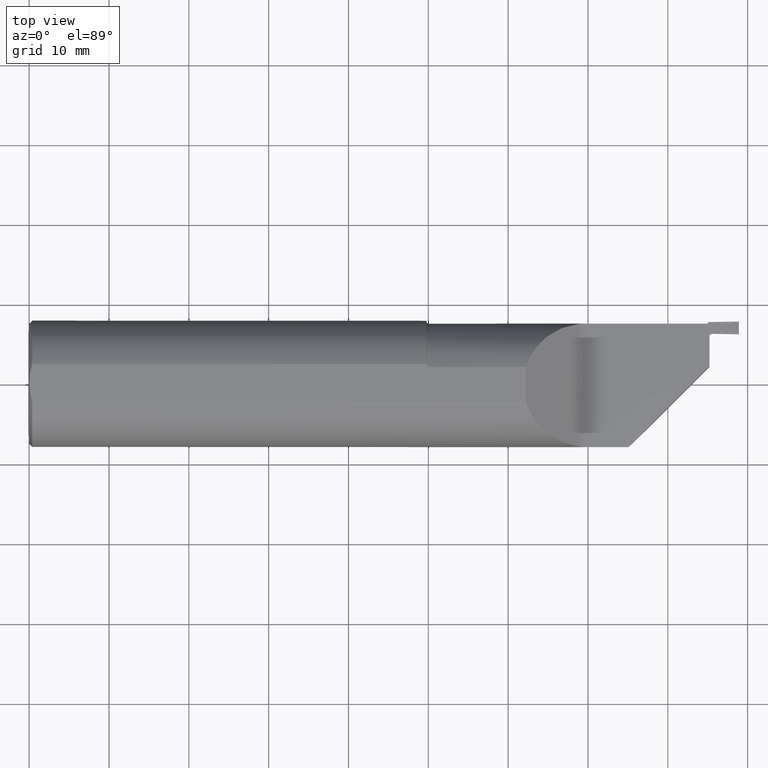
[diagram: clean part render]
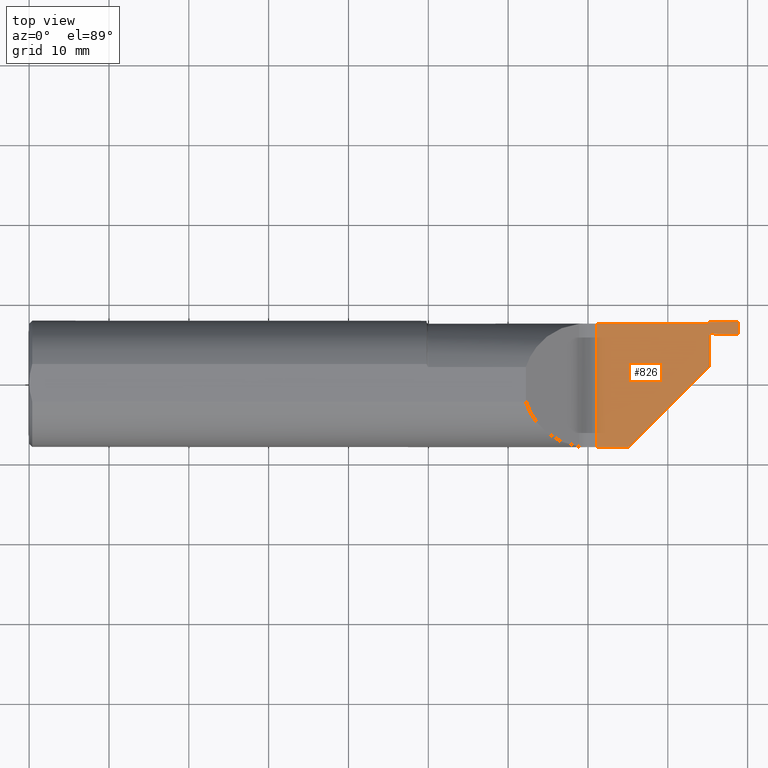
[diagram: same view with one face highlighted and labeled with its STEP entity id]
A machine part, top view. The second image highlights one B-rep face of the part: STEP entity #826.
In plain terms, the highlighted planar face has unit normal (0, 0, -1).
Its self-contained STEP definition (entity closure, byte-faithful):
#9 = LINE ( 'NONE', #498, #421 ) ;
#14 = CARTESIAN_POINT ( 'NONE',  ( 3.341999999999999638, 0.2973492383597809430, 0.000000000000000000 ) ) ;
#35 = CARTESIAN_POINT ( 'NONE',  ( 2.954999999999998295, -0.3123499999999999610, 0.000000000000000000 ) ) ;
#46 = VECTOR ( 'NONE', #201, 39.37007874015748854 ) ;
#50 = EDGE_CURVE ( 'NONE', #595, #247, #348, .T. ) ;
#54 = ORIENTED_EDGE ( 'NONE', *, *, #405, .T. ) ;
#113 = EDGE_CURVE ( 'NONE', #396, #827, #626, .T. ) ;
#127 = EDGE_CURVE ( 'NONE', #396, #192, #427, .T. ) ;
#133 = CARTESIAN_POINT ( 'NONE',  ( 2.799776695296631868, 0.2973492383597807764, -1.707404996040164512E-17 ) ) ;
#148 = EDGE_LOOP ( 'NONE', ( #641, #354, #238, #298, #797, #559, #724, #620, #54, #878 ) ) ;
#151 = DIRECTION ( 'NONE',  ( -1.000000000000000000, 0.000000000000000000, 0.000000000000000000 ) ) ;
#159 = DIRECTION ( 'NONE',  ( -1.000000000000000000, 0.000000000000000000, 0.000000000000000000 ) ) ;
#167 = EDGE_CURVE ( 'NONE', #651, #850, #707, .T. ) ;
#182 = VERTEX_POINT ( 'NONE', #35 ) ;
#192 = VERTEX_POINT ( 'NONE', #14 ) ;
#193 = EDGE_CURVE ( 'NONE', #192, #595, #369, .T. ) ;
#201 = DIRECTION ( 'NONE',  ( -0.7071067811865484609, -0.7071067811865464625, 0.000000000000000000 ) ) ;
#208 = VECTOR ( 'NONE', #769, 39.37007874015748143 ) ;
#238 = ORIENTED_EDGE ( 'NONE', *, *, #113, .T. ) ;
#247 = VERTEX_POINT ( 'NONE', #358 ) ;
#262 = DIRECTION ( 'NONE',  ( 0.000000000000000000, 0.000000000000000000, -1.000000000000000000 ) ) ;
#274 = CARTESIAN_POINT ( 'NONE',  ( 2.799776695296631868, -0.4123500000000000498, 0.000000000000000000 ) ) ;
#282 = VERTEX_POINT ( 'NONE', #676 ) ;
#288 = DIRECTION ( 'NONE',  ( -0.000000000000000000, -0.000000000000000000, 1.000000000000000000 ) ) ;
#297 = DIRECTION ( 'NONE',  ( -0.9998476951563912696, 0.01745240643727530988, -0.000000000000000000 ) ) ;
#298 = ORIENTED_EDGE ( 'NONE', *, *, #556, .F. ) ;
#323 = EDGE_CURVE ( 'NONE', #601, #282, #378, .T. ) ;
#327 = CARTESIAN_POINT ( 'NONE',  ( 3.354999999999999538, 0.2367041488446496589, 0.000000000000000000 ) ) ;
#329 = AXIS2_PLACEMENT_3D ( 'NONE', #858, #445, #151 ) ;
#335 = CARTESIAN_POINT ( 'NONE',  ( 2.799776695296631868, -0.3123499999999999610, 0.000000000000000000 ) ) ;
#348 = LINE ( 'NONE', #686, #423 ) ;
#352 = CARTESIAN_POINT ( 'NONE',  ( 3.354999999999999538, 0.2367041488446496589, 0.000000000000000000 ) ) ;
#354 = ORIENTED_EDGE ( 'NONE', *, *, #127, .F. ) ;
#358 = CARTESIAN_POINT ( 'NONE',  ( 3.500000000000000000, 0.3073492383597807298, 9.134616728814879582E-16 ) ) ;
#369 = CIRCLE ( 'NONE', #888, 0.007999999999999478015 ) ;
#372 = CARTESIAN_POINT ( 'NONE',  ( 3.341999999999999638, 0.3053492383597807280, 0.000000000000000000 ) ) ;
#378 = LINE ( 'NONE', #327, #829 ) ;
#382 = CARTESIAN_POINT ( 'NONE',  ( 3.500000000000000444, 0.2443492383597804796, 0.000000000000000000 ) ) ;
#396 = VERTEX_POINT ( 'NONE', #133 ) ;
#405 = EDGE_CURVE ( 'NONE', #651, #247, #414, .T. ) ;
#409 = CARTESIAN_POINT ( 'NONE',  ( 3.365174524064372896, 0.2467026257962136038, -3.414809992080329023E-17 ) ) ;
#414 = LINE ( 'NONE', #757, #208 ) ;
#419 = CARTESIAN_POINT ( 'NONE',  ( 3.354999999999999538, 0.08765000000000008895, 0.000000000000000000 ) ) ;
#421 = VECTOR ( 'NONE', #510, 39.37007874015748143 ) ;
#423 = VECTOR ( 'NONE', #633, 39.37007874015748143 ) ;
#427 = LINE ( 'NONE', #702, #687 ) ;
#445 = DIRECTION ( 'NONE',  ( 0.000000000000000000, 0.000000000000000000, 1.000000000000000000 ) ) ;
#453 = DIRECTION ( 'NONE',  ( 0.000000000000000000, -1.000000000000000000, 0.000000000000000000 ) ) ;
#475 = EDGE_CURVE ( 'NONE', #282, #182, #629, .T. ) ;
#498 = CARTESIAN_POINT ( 'NONE',  ( 0.000000000000000000, -0.3123499999999999610, 0.000000000000000000 ) ) ;
#499 = CARTESIAN_POINT ( 'NONE',  ( 3.365174524064372896, 0.2467026257962136038, 0.000000000000000000 ) ) ;
#507 = AXIS2_PLACEMENT_3D ( 'NONE', #617, #262, #745 ) ;
#508 = CARTESIAN_POINT ( 'NONE',  ( 3.349976041474970856, 0.3047305604229402776, 1.064327071680889252E-15 ) ) ;
#510 = DIRECTION ( 'NONE',  ( -1.000000000000000000, -0.000000000000000000, -0.000000000000000000 ) ) ;
#545 = EDGE_CURVE ( 'NONE', #850, #601, #614, .T. ) ;
#556 = EDGE_CURVE ( 'NONE', #182, #827, #9, .T. ) ;
#559 = ORIENTED_EDGE ( 'NONE', *, *, #323, .F. ) ;
#588 = DIRECTION ( 'NONE',  ( 1.000000000000000000, 0.000000000000000000, 0.000000000000000000 ) ) ;
#595 = VERTEX_POINT ( 'NONE', #508 ) ;
#601 = VERTEX_POINT ( 'NONE', #352 ) ;
#614 = CIRCLE ( 'NONE', #329, 0.01000000000000016674 ) ;
#617 = CARTESIAN_POINT ( 'NONE',  ( 2.750000000000000000, -0.4123500000000000498, 0.000000000000000000 ) ) ;
#620 = ORIENTED_EDGE ( 'NONE', *, *, #167, .F. ) ;
#626 = LINE ( 'NONE', #274, #726 ) ;
#629 = LINE ( 'NONE', #419, #46 ) ;
#633 = DIRECTION ( 'NONE',  ( 0.9998476951563914916, 0.01745240643726934937, 0.000000000000000000 ) ) ;
#638 = VECTOR ( 'NONE', #297, 39.37007874015748854 ) ;
#641 = ORIENTED_EDGE ( 'NONE', *, *, #193, .F. ) ;
#651 = VERTEX_POINT ( 'NONE', #382 ) ;
#676 = CARTESIAN_POINT ( 'NONE',  ( 3.354999999999999538, 0.08765000000000008895, 0.000000000000000000 ) ) ;
#686 = CARTESIAN_POINT ( 'NONE',  ( 3.660062893257208572, 0.3101431465541811816, 1.707404996040164512E-17 ) ) ;
#687 = VECTOR ( 'NONE', #588, 39.37007874015748143 ) ;
#692 = PLANE ( 'NONE',  #507 ) ;
#702 = CARTESIAN_POINT ( 'NONE',  ( 1.960000000000000409, 0.2973492383597806654, 0.000000000000000000 ) ) ;
#707 = LINE ( 'NONE', #499, #638 ) ;
#724 = ORIENTED_EDGE ( 'NONE', *, *, #545, .F. ) ;
#726 = VECTOR ( 'NONE', #766, 39.37007874015748143 ) ;
#745 = DIRECTION ( 'NONE',  ( -1.000000000000000000, 0.000000000000000000, -0.000000000000000000 ) ) ;
#757 = CARTESIAN_POINT ( 'NONE',  ( 3.500000000000000000, -0.4123500000000000498, 0.000000000000000000 ) ) ;
#766 = DIRECTION ( 'NONE',  ( 0.000000000000000000, -1.000000000000000000, 0.000000000000000000 ) ) ;
#769 = DIRECTION ( 'NONE',  ( 0.000000000000000000, 1.000000000000000000, 0.000000000000000000 ) ) ;
#797 = ORIENTED_EDGE ( 'NONE', *, *, #475, .F. ) ;
#823 = FACE_OUTER_BOUND ( 'NONE', #148, .T. ) ;
#826 = ADVANCED_FACE ( 'NONE', ( #823 ), #692, .F. ) ;
#827 = VERTEX_POINT ( 'NONE', #335 ) ;
#829 = VECTOR ( 'NONE', #453, 39.37007874015748143 ) ;
#850 = VERTEX_POINT ( 'NONE', #409 ) ;
#858 = CARTESIAN_POINT ( 'NONE',  ( 3.364999999999999769, 0.2367041488446496589, 0.000000000000000000 ) ) ;
#878 = ORIENTED_EDGE ( 'NONE', *, *, #50, .F. ) ;
#888 = AXIS2_PLACEMENT_3D ( 'NONE', #372, #288, #159 ) ;